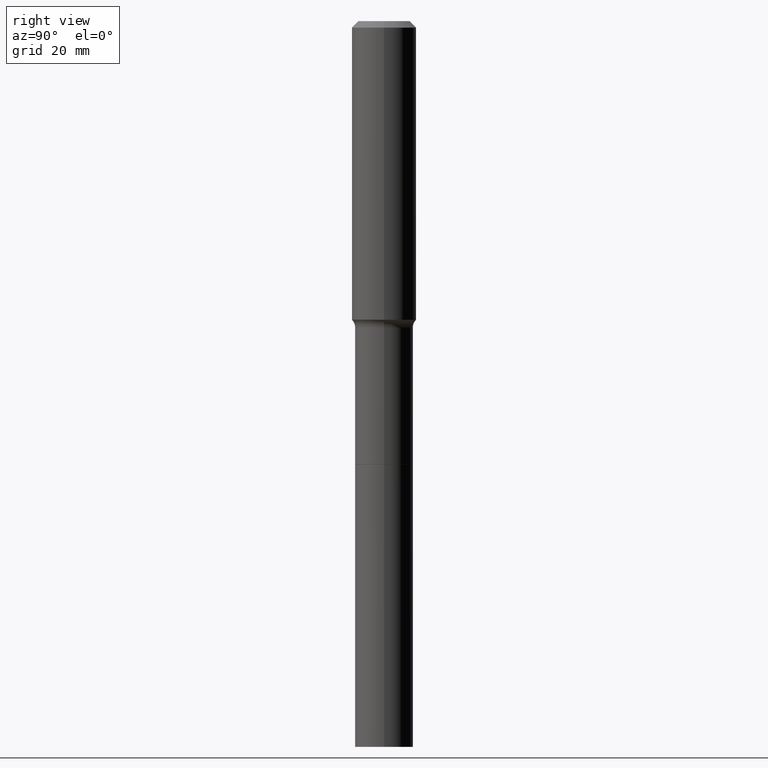
[diagram: clean part render]
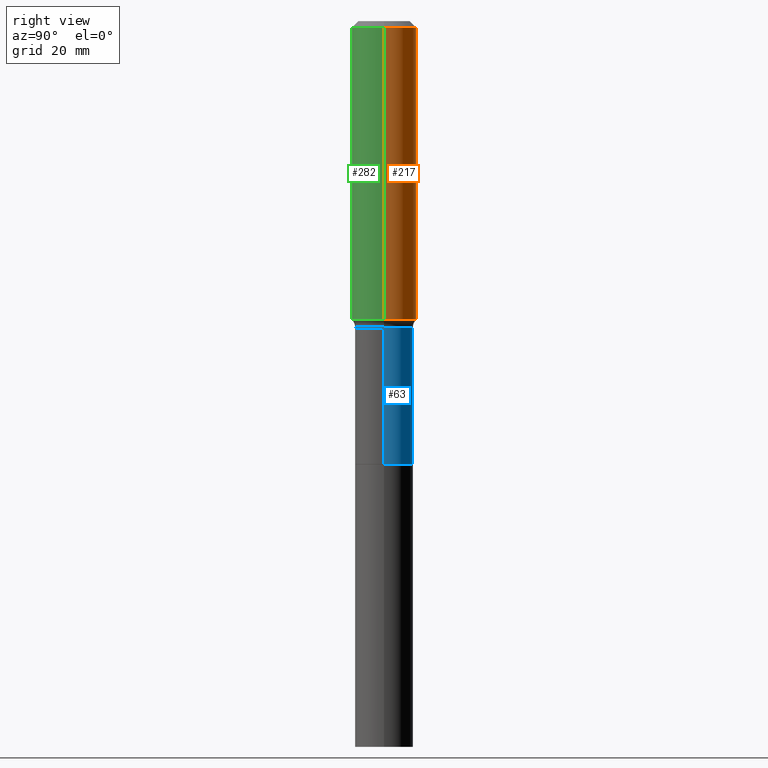
[diagram: same view with three faces highlighted in distinct colors, each labeled with its STEP entity id]
A machine part, right view with three faces highlighted in distinct colors.
Their STEP definitions:

[orange] entity #217 — the highlighted cylindrical surface (edge-blend (fillet) strip) has radius 5.9995 mm, axis along (-0, 0, 1).
#14 = EDGE_LOOP ( 'NONE', ( #501, #194, #272, #417 ) ) ;
#34 = CARTESIAN_POINT ( 'NONE',  ( 0.2361999999999999933, -1.814313362916447440E-15, -0.04724000000000027483 ) ) ;
#78 = CARTESIAN_POINT ( 'NONE',  ( 0.000000000000000000, 0.000000000000000000, 0.000000000000000000 ) ) ;
#81 = VERTEX_POINT ( 'NONE', #323 ) ;
#104 = EDGE_CURVE ( 'NONE', #466, #381, #219, .T. ) ;
#115 = FACE_OUTER_BOUND ( 'NONE', #14, .T. ) ;
#131 = CIRCLE ( 'NONE', #360, 0.2362000000000002709 ) ;
#133 = CARTESIAN_POINT ( 'NONE',  ( 0.2362000000000001321, -1.649375784469497117E-15, 1.151752954443000789E-29 ) ) ;
#134 = CARTESIAN_POINT ( 'NONE',  ( -0.2362000000000001321, 1.678301941865357577E-15, -1.161852468318209457E-29 ) ) ;
#139 = DIRECTION ( 'NONE',  ( 1.000000000000000000, -6.982962677686266711E-15, 0.000000000000000000 ) ) ;
#144 = AXIS2_PLACEMENT_3D ( 'NONE', #495, #185, #139 ) ;
#160 = CARTESIAN_POINT ( 'NONE',  ( -0.2362000000000002709, -5.958193630505821583E-15, -2.187179260394222169 ) ) ;
#185 = DIRECTION ( 'NONE',  ( -2.445468806185136597E-29, 3.491481338843145583E-15, 1.000000000000000000 ) ) ;
#186 = AXIS2_PLACEMENT_3D ( 'NONE', #78, #500, #297 ) ;
#194 = ORIENTED_EDGE ( 'NONE', *, *, #104, .T. ) ;
#198 = VERTEX_POINT ( 'NONE', #34 ) ;
#217 = ADVANCED_FACE ( 'NONE', ( #115 ), #458, .T. ) ;
#219 = LINE ( 'NONE', #134, #255 ) ;
#255 = VECTOR ( 'NONE', #292, 39.37007874015748143 ) ;
#272 = ORIENTED_EDGE ( 'NONE', *, *, #294, .F. ) ;
#274 = EDGE_CURVE ( 'NONE', #81, #466, #131, .T. ) ;
#292 = DIRECTION ( 'NONE',  ( -2.445468806185136877E-29, 3.491481338843145188E-15, 1.000000000000000000 ) ) ;
#294 = EDGE_CURVE ( 'NONE', #198, #381, #300, .T. ) ;
#297 = DIRECTION ( 'NONE',  ( 1.000000000000000000, -6.982962677686266711E-15, 4.876176775795936353E-29 ) ) ;
#300 = CIRCLE ( 'NONE', #144, 0.2361999999999999933 ) ;
#323 = CARTESIAN_POINT ( 'NONE',  ( 0.2362000000000002709, -9.285871356840677658E-15, -2.187179260394222169 ) ) ;
#336 = CARTESIAN_POINT ( 'NONE',  ( 5.348678654829147801E-29, -7.636495572371179555E-15, -2.187179260394222169 ) ) ;
#339 = DIRECTION ( 'NONE',  ( 1.000000000000000000, -6.982962677686269077E-15, 0.000000000000000000 ) ) ;
#360 = AXIS2_PLACEMENT_3D ( 'NONE', #336, #503, #339 ) ;
#371 = DIRECTION ( 'NONE',  ( -2.445468806185136877E-29, 3.491481338843145188E-15, 1.000000000000000000 ) ) ;
#375 = EDGE_CURVE ( 'NONE', #81, #198, #482, .T. ) ;
#379 = CARTESIAN_POINT ( 'NONE',  ( -0.2361999999999999933, -2.222414633543706869E-15, -0.04724000000000027483 ) ) ;
#381 = VERTEX_POINT ( 'NONE', #379 ) ;
#417 = ORIENTED_EDGE ( 'NONE', *, *, #375, .F. ) ;
#438 = VECTOR ( 'NONE', #371, 39.37007874015748143 ) ;
#458 = CYLINDRICAL_SURFACE ( 'NONE', #186, 0.2362000000000001321 ) ;
#466 = VERTEX_POINT ( 'NONE', #160 ) ;
#482 = LINE ( 'NONE', #133, #438 ) ;
#495 = CARTESIAN_POINT ( 'NONE',  ( 1.155239464041865331E-30, -1.649375784469511612E-16, -0.04724000000000027483 ) ) ;
#500 = DIRECTION ( 'NONE',  ( -2.445468806185136597E-29, 3.491481338843145583E-15, 1.000000000000000000 ) ) ;
#501 = ORIENTED_EDGE ( 'NONE', *, *, #274, .T. ) ;
#503 = DIRECTION ( 'NONE',  ( -2.445468806185136597E-29, 3.491481338843145583E-15, 1.000000000000000000 ) ) ;

[blue] entity #63 — the highlighted cylindrical surface (edge-blend (fillet) strip) has radius 5.4 mm, axis along (-0, 0, 1).
#2 = CARTESIAN_POINT ( 'NONE',  ( 7.934323541667678728E-29, -1.132811120387658868E-14, -3.244500000000000828 ) ) ;
#27 = FACE_OUTER_BOUND ( 'NONE', #74, .T. ) ;
#31 = CYLINDRICAL_SURFACE ( 'NONE', #84, 0.2125999999999999279 ) ;
#35 = ORIENTED_EDGE ( 'NONE', *, *, #410, .F. ) ;
#40 = VERTEX_POINT ( 'NONE', #307 ) ;
#45 = DIRECTION ( 'NONE',  ( 1.000000000000000000, -6.982962677686269866E-15, 0.000000000000000000 ) ) ;
#63 = ADVANCED_FACE ( 'NONE', ( #27 ), #31, .T. ) ;
#72 = EDGE_CURVE ( 'NONE', #177, #157, #404, .T. ) ;
#74 = EDGE_LOOP ( 'NONE', ( #108, #201, #220, #35 ) ) ;
#84 = AXIS2_PLACEMENT_3D ( 'NONE', #128, #367, #447 ) ;
#86 = CARTESIAN_POINT ( 'NONE',  ( 0.2125999999999999279, -1.484577865276100080E-15, 1.036675182534215730E-29 ) ) ;
#92 = DIRECTION ( 'NONE',  ( 1.000000000000000000, -6.982962677686269866E-15, 0.000000000000000000 ) ) ;
#108 = ORIENTED_EDGE ( 'NONE', *, *, #72, .T. ) ;
#111 = CARTESIAN_POINT ( 'NONE',  ( -0.2125999999999999834, -8.070883807894330677E-15, -3.244500000000000828 ) ) ;
#128 = CARTESIAN_POINT ( 'NONE',  ( 0.000000000000000000, 0.000000000000000000, 0.000000000000000000 ) ) ;
#143 = AXIS2_PLACEMENT_3D ( 'NONE', #2, #164, #45 ) ;
#157 = VERTEX_POINT ( 'NONE', #111 ) ;
#164 = DIRECTION ( 'NONE',  ( -2.445468806185136597E-29, 3.491481338843145583E-15, 1.000000000000000000 ) ) ;
#165 = VECTOR ( 'NONE', #420, 39.37007874015748143 ) ;
#177 = VERTEX_POINT ( 'NONE', #181 ) ;
#181 = CARTESIAN_POINT ( 'NONE',  ( 0.2125999999999999834, -1.281268906915268895E-14, -3.244500000000000828 ) ) ;
#189 = CARTESIAN_POINT ( 'NONE',  ( 0.2125999999999998724, -9.319461989640119105E-15, -2.244000000000000217 ) ) ;
#191 = VERTEX_POINT ( 'NONE', #189 ) ;
#201 = ORIENTED_EDGE ( 'NONE', *, *, #296, .T. ) ;
#209 = DIRECTION ( 'NONE',  ( -2.445468806185136597E-29, 3.491481338843145583E-15, 1.000000000000000000 ) ) ;
#218 = CARTESIAN_POINT ( 'NONE',  ( 5.487632001079447088E-29, -7.834884124364020406E-15, -2.244000000000000217 ) ) ;
#220 = ORIENTED_EDGE ( 'NONE', *, *, #380, .F. ) ;
#261 = CARTESIAN_POINT ( 'NONE',  ( -0.2125999999999999279, 1.510613856225972483E-15, -1.045765600188192591E-29 ) ) ;
#269 = AXIS2_PLACEMENT_3D ( 'NONE', #218, #209, #92 ) ;
#296 = EDGE_CURVE ( 'NONE', #157, #40, #498, .T. ) ;
#307 = CARTESIAN_POINT ( 'NONE',  ( -0.2125999999999998724, -8.070883807894330677E-15, -2.244000000000000217 ) ) ;
#334 = VECTOR ( 'NONE', #402, 39.37007874015748143 ) ;
#341 = LINE ( 'NONE', #86, #334 ) ;
#367 = DIRECTION ( 'NONE',  ( -2.445468806185136597E-29, 3.491481338843145583E-15, 1.000000000000000000 ) ) ;
#380 = EDGE_CURVE ( 'NONE', #191, #40, #405, .T. ) ;
#402 = DIRECTION ( 'NONE',  ( -2.445468806185136877E-29, 3.491481338843145188E-15, 1.000000000000000000 ) ) ;
#404 = CIRCLE ( 'NONE', #143, 0.2125999999999999834 ) ;
#405 = CIRCLE ( 'NONE', #269, 0.2125999999999998724 ) ;
#410 = EDGE_CURVE ( 'NONE', #177, #191, #341, .T. ) ;
#420 = DIRECTION ( 'NONE',  ( -2.445468806185136877E-29, 3.491481338843145188E-15, 1.000000000000000000 ) ) ;
#447 = DIRECTION ( 'NONE',  ( 1.000000000000000000, -6.982962677686268288E-15, 4.876176775795936353E-29 ) ) ;
#498 = LINE ( 'NONE', #261, #165 ) ;

[green] entity #282 — the highlighted cylindrical surface (edge-blend (fillet) strip) has radius 5.9995 mm, axis along (-0, 0, 1).
#34 = CARTESIAN_POINT ( 'NONE',  ( 0.2361999999999999933, -1.814313362916447440E-15, -0.04724000000000027483 ) ) ;
#58 = ORIENTED_EDGE ( 'NONE', *, *, #202, .T. ) ;
#73 = CARTESIAN_POINT ( 'NONE',  ( 5.348678654829147801E-29, -7.636495572371179555E-15, -2.187179260394222169 ) ) ;
#81 = VERTEX_POINT ( 'NONE', #323 ) ;
#97 = CARTESIAN_POINT ( 'NONE',  ( 1.155239464041865331E-30, -1.649375784469511612E-16, -0.04724000000000027483 ) ) ;
#104 = EDGE_CURVE ( 'NONE', #466, #381, #219, .T. ) ;
#133 = CARTESIAN_POINT ( 'NONE',  ( 0.2362000000000001321, -1.649375784469497117E-15, 1.151752954443000789E-29 ) ) ;
#134 = CARTESIAN_POINT ( 'NONE',  ( -0.2362000000000001321, 1.678301941865357577E-15, -1.161852468318209457E-29 ) ) ;
#142 = DIRECTION ( 'NONE',  ( -2.445468806185136597E-29, 3.491481338843145583E-15, 1.000000000000000000 ) ) ;
#147 = CARTESIAN_POINT ( 'NONE',  ( 0.000000000000000000, 0.000000000000000000, 0.000000000000000000 ) ) ;
#160 = CARTESIAN_POINT ( 'NONE',  ( -0.2362000000000002709, -5.958193630505821583E-15, -2.187179260394222169 ) ) ;
#174 = CIRCLE ( 'NONE', #393, 0.2362000000000002709 ) ;
#184 = EDGE_LOOP ( 'NONE', ( #306, #58, #241, #235 ) ) ;
#198 = VERTEX_POINT ( 'NONE', #34 ) ;
#202 = EDGE_CURVE ( 'NONE', #466, #81, #174, .T. ) ;
#203 = AXIS2_PLACEMENT_3D ( 'NONE', #147, #142, #226 ) ;
#219 = LINE ( 'NONE', #134, #255 ) ;
#226 = DIRECTION ( 'NONE',  ( 1.000000000000000000, -6.982962677686266711E-15, 4.876176775795936353E-29 ) ) ;
#228 = CYLINDRICAL_SURFACE ( 'NONE', #203, 0.2362000000000001321 ) ;
#235 = ORIENTED_EDGE ( 'NONE', *, *, #507, .F. ) ;
#241 = ORIENTED_EDGE ( 'NONE', *, *, #375, .T. ) ;
#255 = VECTOR ( 'NONE', #292, 39.37007874015748143 ) ;
#282 = ADVANCED_FACE ( 'NONE', ( #423 ), #228, .T. ) ;
#288 = DIRECTION ( 'NONE',  ( -2.445468806185136597E-29, 3.491481338843145583E-15, 1.000000000000000000 ) ) ;
#292 = DIRECTION ( 'NONE',  ( -2.445468806185136877E-29, 3.491481338843145188E-15, 1.000000000000000000 ) ) ;
#301 = CIRCLE ( 'NONE', #515, 0.2361999999999999933 ) ;
#306 = ORIENTED_EDGE ( 'NONE', *, *, #104, .F. ) ;
#323 = CARTESIAN_POINT ( 'NONE',  ( 0.2362000000000002709, -9.285871356840677658E-15, -2.187179260394222169 ) ) ;
#343 = DIRECTION ( 'NONE',  ( 1.000000000000000000, -6.982962677686269077E-15, 0.000000000000000000 ) ) ;
#371 = DIRECTION ( 'NONE',  ( -2.445468806185136877E-29, 3.491481338843145188E-15, 1.000000000000000000 ) ) ;
#375 = EDGE_CURVE ( 'NONE', #81, #198, #482, .T. ) ;
#376 = DIRECTION ( 'NONE',  ( 1.000000000000000000, -6.982962677686266711E-15, 0.000000000000000000 ) ) ;
#379 = CARTESIAN_POINT ( 'NONE',  ( -0.2361999999999999933, -2.222414633543706869E-15, -0.04724000000000027483 ) ) ;
#381 = VERTEX_POINT ( 'NONE', #379 ) ;
#393 = AXIS2_PLACEMENT_3D ( 'NONE', #73, #465, #343 ) ;
#423 = FACE_OUTER_BOUND ( 'NONE', #184, .T. ) ;
#438 = VECTOR ( 'NONE', #371, 39.37007874015748143 ) ;
#465 = DIRECTION ( 'NONE',  ( -2.445468806185136597E-29, 3.491481338843145583E-15, 1.000000000000000000 ) ) ;
#466 = VERTEX_POINT ( 'NONE', #160 ) ;
#482 = LINE ( 'NONE', #133, #438 ) ;
#507 = EDGE_CURVE ( 'NONE', #381, #198, #301, .T. ) ;
#515 = AXIS2_PLACEMENT_3D ( 'NONE', #97, #288, #376 ) ;